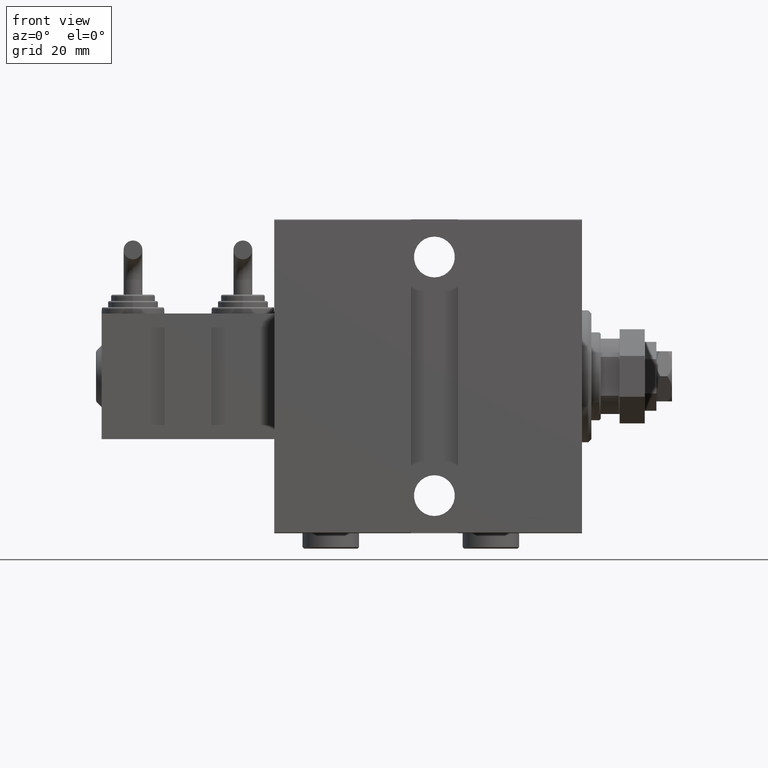
[diagram: clean part render]
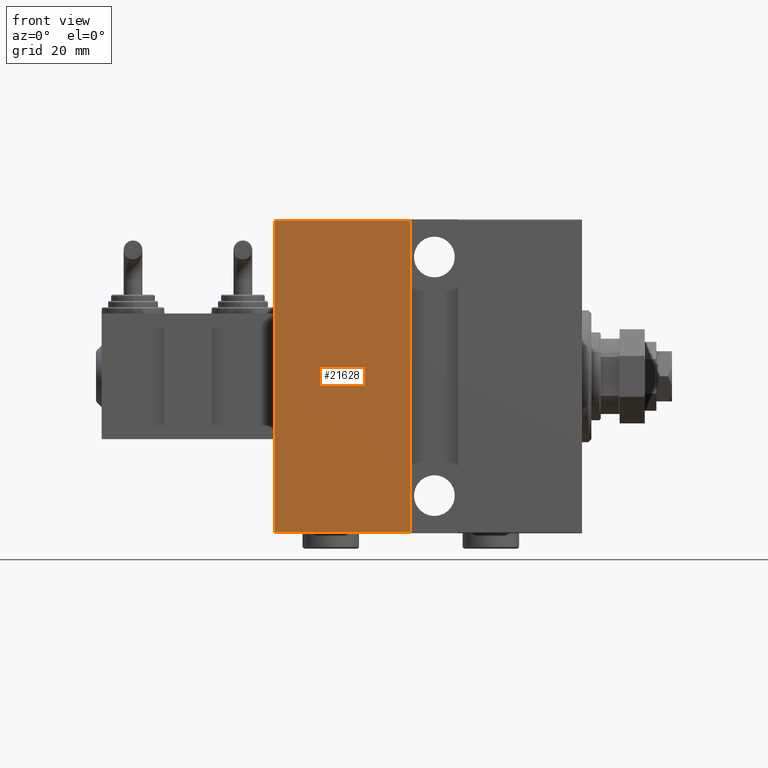
[diagram: same view with one face highlighted and labeled with its STEP entity id]
A machine part, front view. The second image highlights one B-rep face of the part: STEP entity #21628.
In plain terms, the highlighted planar face has unit normal (-0, 1, -0).
Its self-contained STEP definition (entity closure, byte-faithful):
#485 = DIRECTION ( 'NONE',  ( 0.000000000000000000, 1.387778780781445182E-16, -1.000000000000000000 ) ) ;
#1858 = LINE ( 'NONE', #13924, #44356 ) ;
#3994 = VECTOR ( 'NONE', #43313, 1000.000000000000000 ) ;
#7306 = LINE ( 'NONE', #30450, #18554 ) ;
#7783 = PLANE ( 'NONE',  #21352 ) ;
#13924 = CARTESIAN_POINT ( 'NONE',  ( 98.00000000000000000, 37.49999999999999289, 49.70000000000000284 ) ) ;
#14815 = VERTEX_POINT ( 'NONE', #17455 ) ;
#15234 = DIRECTION ( 'NONE',  ( -1.000000000000000000, 0.000000000000000000, 0.000000000000000000 ) ) ;
#16095 = FACE_OUTER_BOUND ( 'NONE', #30212, .T. ) ;
#17455 = CARTESIAN_POINT ( 'NONE',  ( 98.00000000000000000, 37.49999999999999289, 49.70000000000000284 ) ) ;
#18554 = VECTOR ( 'NONE', #45797, 1000.000000000000000 ) ;
#18751 = LINE ( 'NONE', #34091, #22559 ) ;
#20680 = LINE ( 'NONE', #35524, #3994 ) ;
#21352 = AXIS2_PLACEMENT_3D ( 'NONE', #31421, #39460, #485 ) ;
#21628 = ADVANCED_FACE ( 'NONE', ( #16095 ), #7783, .F. ) ;
#22456 = ORIENTED_EDGE ( 'NONE', *, *, #35423, .F. ) ;
#22559 = VECTOR ( 'NONE', #15234, 1000.000000000000000 ) ;
#23325 = CARTESIAN_POINT ( 'NONE',  ( 98.00000000000000000, 37.50000000000000711, -49.70000000000000284 ) ) ;
#27186 = VERTEX_POINT ( 'NONE', #23325 ) ;
#30212 = EDGE_LOOP ( 'NONE', ( #22456, #33322, #34808, #38147 ) ) ;
#30450 = CARTESIAN_POINT ( 'NONE',  ( 54.50000000000000000, 37.50000000000000000, -50.00000000000000711 ) ) ;
#31421 = CARTESIAN_POINT ( 'NONE',  ( 98.00000000000000000, 37.50000000000000711, -50.00000000000000711 ) ) ;
#33322 = ORIENTED_EDGE ( 'NONE', *, *, #36269, .T. ) ;
#34091 = CARTESIAN_POINT ( 'NONE',  ( 98.00000000000000000, 37.50000000000000711, -49.70000000000000284 ) ) ;
#34808 = ORIENTED_EDGE ( 'NONE', *, *, #43783, .F. ) ;
#35423 = EDGE_CURVE ( 'NONE', #27186, #14815, #20680, .T. ) ;
#35524 = CARTESIAN_POINT ( 'NONE',  ( 98.00000000000000000, 37.50000000000000711, -50.00000000000000711 ) ) ;
#36269 = EDGE_CURVE ( 'NONE', #27186, #41129, #18751, .T. ) ;
#37753 = EDGE_CURVE ( 'NONE', #46623, #14815, #1858, .T. ) ;
#38147 = ORIENTED_EDGE ( 'NONE', *, *, #37753, .T. ) ;
#39460 = DIRECTION ( 'NONE',  ( 0.000000000000000000, -1.000000000000000000, -1.387778780781445182E-16 ) ) ;
#39604 = DIRECTION ( 'NONE',  ( 1.000000000000000000, 0.000000000000000000, 0.000000000000000000 ) ) ;
#39679 = CARTESIAN_POINT ( 'NONE',  ( 54.50000000000000000, 37.50000000000000000, -49.70000000000000284 ) ) ;
#41129 = VERTEX_POINT ( 'NONE', #39679 ) ;
#43313 = DIRECTION ( 'NONE',  ( 0.000000000000000000, -1.387778780781445182E-16, 1.000000000000000000 ) ) ;
#43783 = EDGE_CURVE ( 'NONE', #46623, #41129, #7306, .T. ) ;
#44356 = VECTOR ( 'NONE', #39604, 1000.000000000000000 ) ;
#45379 = CARTESIAN_POINT ( 'NONE',  ( 54.50000000000001421, 37.50000000000000000, 49.70000000000000284 ) ) ;
#45797 = DIRECTION ( 'NONE',  ( -1.387778780781445676E-16, -0.000000000000000000, -1.000000000000000000 ) ) ;
#46623 = VERTEX_POINT ( 'NONE', #45379 ) ;